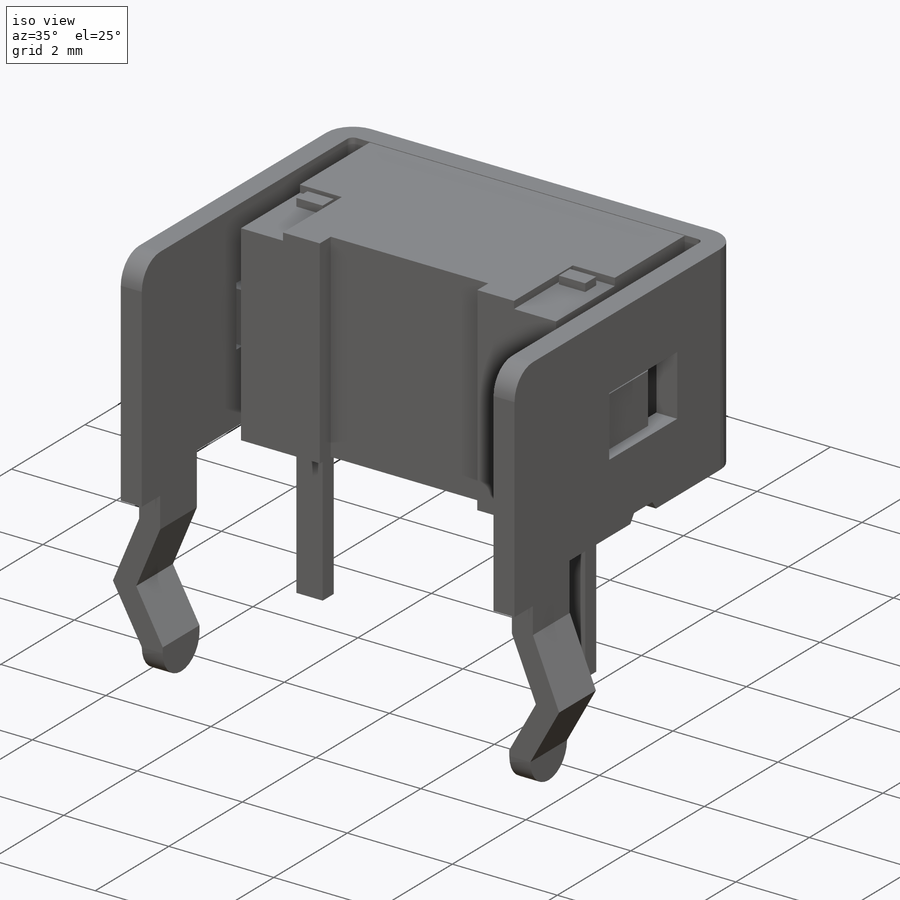
[diagram: iso view]
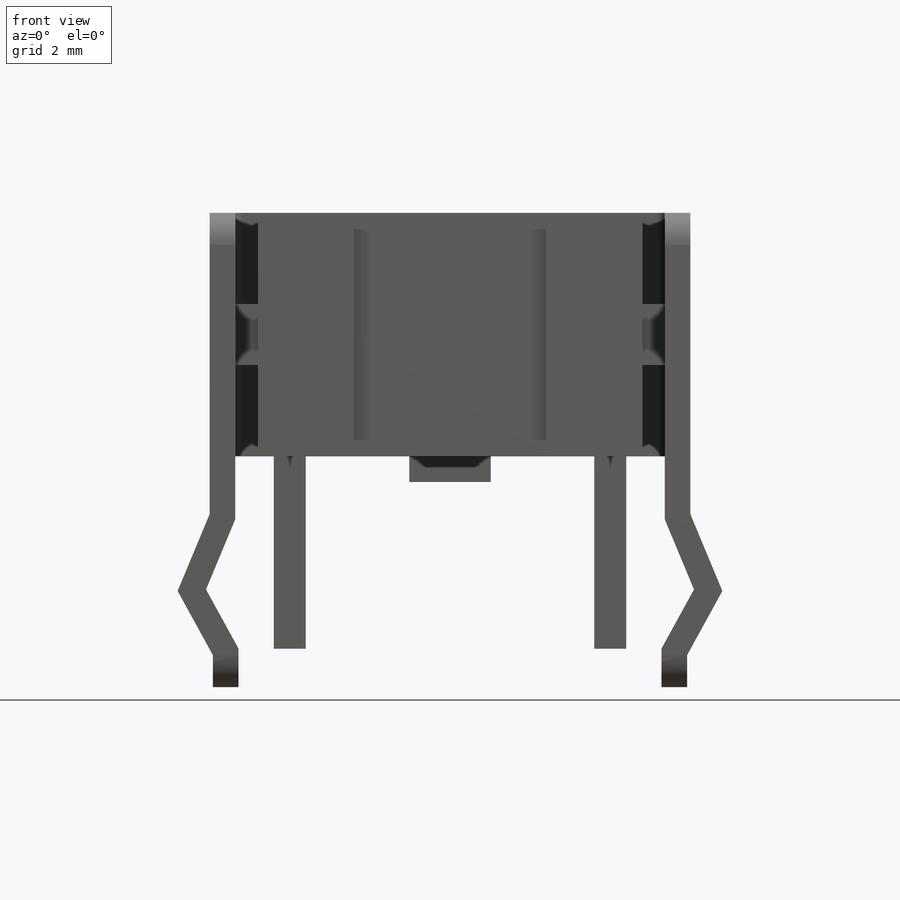
[diagram: front view]
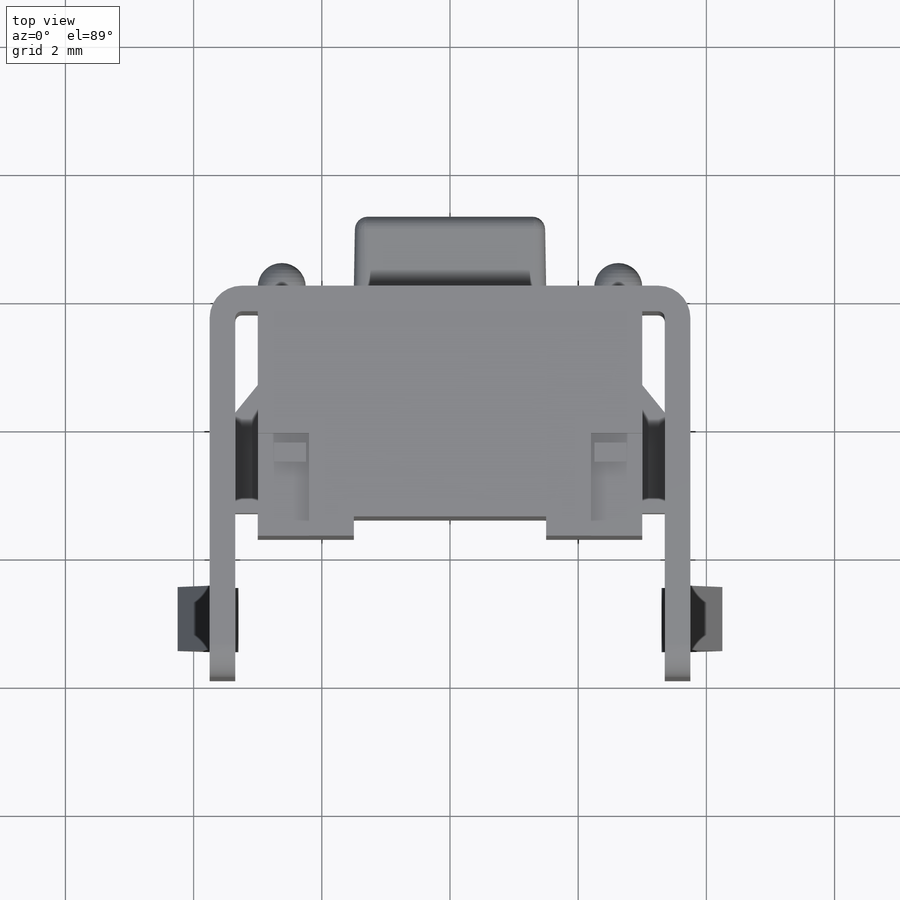
[diagram: top view]
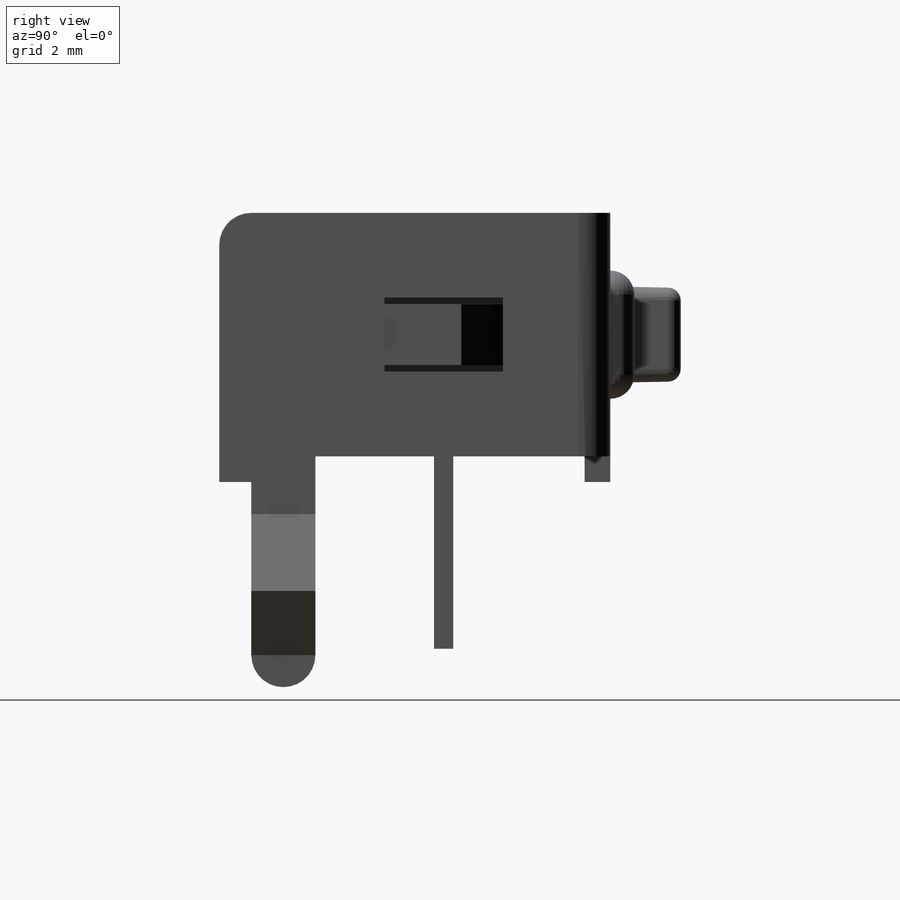
[diagram: right view]
SOLIDWORKS PART (.sldprt)
format: sldprt  version: not decoded by parser v0  size: 707,072 bytes
history: native  units: mm
features: sketch x15, extrude x8, cut_extrude x5, fillet x5, plane x2, material x1 (+12 scaffold rows collapsed)
feature tree (48):
  scaffold x12  (default folders/planes/origin — collapsed)
  material  "Material <not specified>"
  plane  "Plane 1"  Offset=0.83mm
  sketch  "Sketch1"  dims[c1.D1=3.5mm c1.D2=6.0mm c1.D3=6.0mm c1.D4=0.33mm c1.D5=0.2mm c2.D1=3.5mm c2.D3=0.3mm c2.D4=1.5mm]
  extrude  "Extrude1"  Depth=3.8mm
  sketch  "Sketch2"  dims[c1.D1=6.1mm c1.D2=7.5mm c1.D3=0.4mm c2.D1=3.8mm c2.D5=0.4mm c2.D6=1.0mm c2.D7=5.0mm]
  sketch  "Sketch3"  dims[c1.D1=0.55mm c1.D2=0.3mm c1.D3=0.15mm c1.D4=0.15mm c1.D5=0.15mm c2.D1=0.8mm c2.D2=1.6mm]
  cut_extrude  "Cut-Extrude1"  Depth=0.15mm
  fillet  "Fillet1"  Radius=0.5mm
  sketch  "Sketch9"  dims[c1.D1=3.2mm c1.D2=1.7mm c1.D3=3.0mm c1.D4=1.5mm c2.D1=0.1mm]
  cut_extrude  "Cut-Extrude5"  Depth=0.4mm
  sketch  "Sketch11"
  cut_extrude  "Cut-Extrude6"  Depth=0.01mm
  fillet  "Fillet6"  Radius=0.1mm
  extrude  "Extrude2"  [1 undecoded]
  sketch  "Sketch9<3>"  dims[D1=5.0mm D2=1.0mm D3=1.0deg D4=1.0deg]
  fillet  "Fillet7"  Radius=0.2mm
  sketch  "Sketch13"  dims[D1=0.4mm D2=1.27mm]
  extrude  "Extrude3"  Depth=0.4mm
  sketch  "Sketch14"  dims[D1=3.5mm D2=1.85mm D3=1.15mm D4=0.15mm D5=0.7mm D6=0.5mm]
  cut_extrude  "Cut-Extrude7"  [1 undecoded]
  cut_extrude  "Cut-Extrude8"  [1 undecoded]
  sketch  "Sketch14<3>"  dims[D19=9.5mm]
  sketch  "Sketch15"  dims[D1=0.1mm D2=2.0mm D3=1.2mm]
  extrude  "Extrude4"  Depth=0.1mm
  sketch  "Sketch16"  dims[D1=0.75mm D2=0.9mm D3=0.9mm]
  extrude  "Extrude5"  Depth=0.375mm
  fillet  "Fillet8"  Radius=0.374mm
  sketch  "Sketch17"  dims[D1=0.4mm D2=0.4mm D3=0.4mm D4=7.4mm D5=8.5mm D6=7.0mm D7=0.5mm D8=1.0mm D9=0.9mm]
  extrude  "Extrude6"  Depth=0.5mm
  fillet  "Fillet9"  Radius=0.5mm
  extrude  "Extrude7"  [1 undecoded]
  sketch  "Sketch17<3>"
  sketch  "Sketch18"  dims[D1=5.0mm D2=0.5mm D3=6.8mm]
  extrude  "Extrude8"  Depth=0.15mm
  plane  "Board Plane"  Offset=0.4mm
  sketch  "Component_Outline"
decode coverage: 26 of 33 modeling features carry decoded parameters
note: 4 parameter values undecoded
summary: no parameter record found for 4 features
note: suppression state not decoded; provenance and decode notes live in map.json
